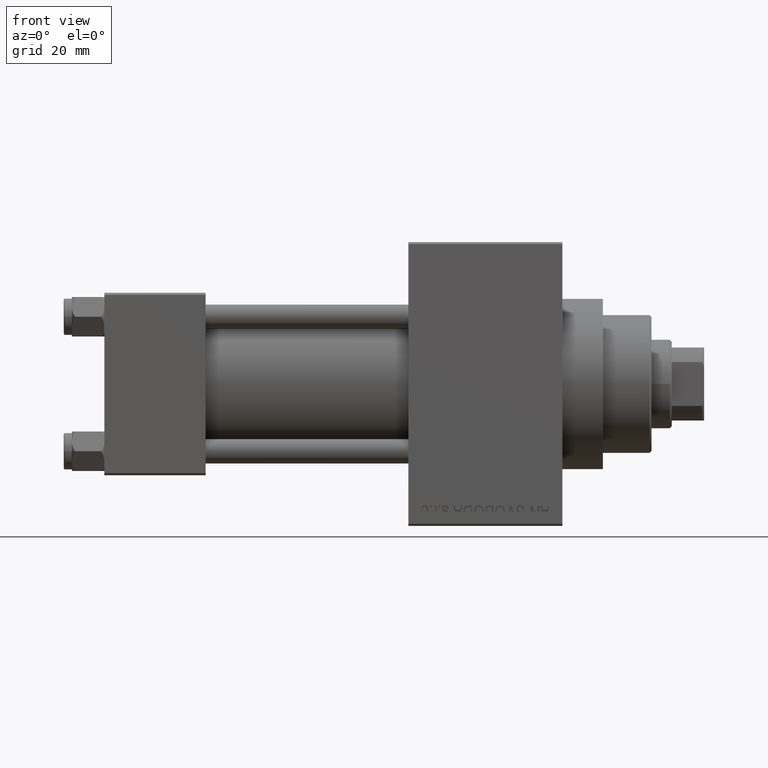
[diagram: clean part render]
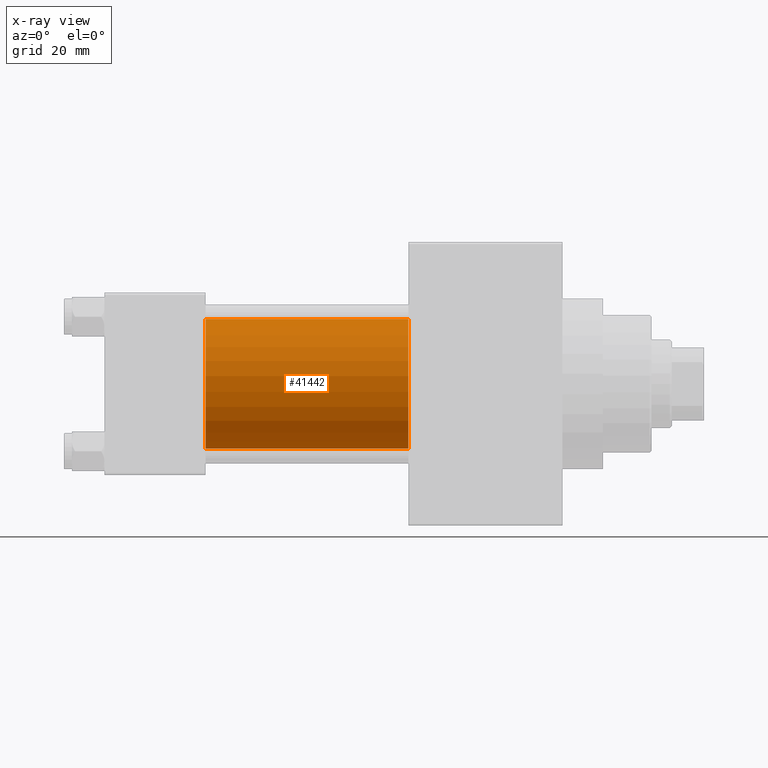
[diagram: x-ray — body ghosted, one internal face saturated and labeled with its STEP entity id]
A machine part, front view, then the same camera in x-ray: the body is ghosted and one INTERNAL B-rep face — a face not visible from any outside direction — is saturated and labeled: STEP entity #41442.
In plain terms, the highlighted cylindrical surface (partial cylindrical patch) has radius 16 mm, axis along (-1, -0, -0).
Its self-contained STEP definition (entity closure, byte-faithful):
#3373 = CARTESIAN_POINT ( 'NONE',  ( 25.00000000000000000, -2.602085213965210642E-15, 16.00000000000000000 ) ) ;
#5929 = CARTESIAN_POINT ( 'NONE',  ( 75.00000000000001421, -2.602085213965210642E-15, 0.000000000000000000 ) ) ;
#6655 = CYLINDRICAL_SURFACE ( 'NONE', #44737, 16.00000000000000000 ) ;
#8057 = AXIS2_PLACEMENT_3D ( 'NONE', #35796, #38539, #46979 ) ;
#9457 = LINE ( 'NONE', #42997, #16844 ) ;
#11369 = CIRCLE ( 'NONE', #39136, 16.00000000000000000 ) ;
#11475 = CARTESIAN_POINT ( 'NONE',  ( 75.00000000000001421, -6.426503353294456087E-16, -16.00000000000000000 ) ) ;
#12828 = EDGE_CURVE ( 'NONE', #32093, #22797, #9457, .T. ) ;
#14147 = DIRECTION ( 'NONE',  ( 1.000000000000000000, 0.000000000000000000, 0.000000000000000000 ) ) ;
#14867 = DIRECTION ( 'NONE',  ( -1.000000000000000000, -0.000000000000000000, -0.000000000000000000 ) ) ;
#15122 = DIRECTION ( 'NONE',  ( 0.000000000000000000, 0.000000000000000000, -1.000000000000000000 ) ) ;
#15828 = ORIENTED_EDGE ( 'NONE', *, *, #35821, .F. ) ;
#16706 = CARTESIAN_POINT ( 'NONE',  ( 75.00000000000001421, -2.602085213965210642E-15, 16.00000000000000000 ) ) ;
#16844 = VECTOR ( 'NONE', #31586, 1000.000000000000000 ) ;
#17077 = DIRECTION ( 'NONE',  ( -1.000000000000000000, -0.000000000000000000, -0.000000000000000000 ) ) ;
#17810 = DIRECTION ( 'NONE',  ( 0.000000000000000000, 0.000000000000000000, 1.000000000000000000 ) ) ;
#18749 = VERTEX_POINT ( 'NONE', #3373 ) ;
#20716 = CIRCLE ( 'NONE', #8057, 16.00000000000000000 ) ;
#22797 = VERTEX_POINT ( 'NONE', #30474 ) ;
#29791 = EDGE_LOOP ( 'NONE', ( #32965, #44186, #15828, #30932 ) ) ;
#30027 = LINE ( 'NONE', #46339, #36077 ) ;
#30474 = CARTESIAN_POINT ( 'NONE',  ( 25.00000000000000000, -6.426503353294456087E-16, -16.00000000000000000 ) ) ;
#30932 = ORIENTED_EDGE ( 'NONE', *, *, #47438, .F. ) ;
#31586 = DIRECTION ( 'NONE',  ( -1.000000000000000000, -0.000000000000000000, -0.000000000000000000 ) ) ;
#32093 = VERTEX_POINT ( 'NONE', #11475 ) ;
#32965 = ORIENTED_EDGE ( 'NONE', *, *, #41154, .T. ) ;
#34740 = VERTEX_POINT ( 'NONE', #16706 ) ;
#35796 = CARTESIAN_POINT ( 'NONE',  ( 25.00000000000000000, -2.602085213965210642E-15, 0.000000000000000000 ) ) ;
#35821 = EDGE_CURVE ( 'NONE', #18749, #22797, #20716, .T. ) ;
#36077 = VECTOR ( 'NONE', #14867, 1000.000000000000000 ) ;
#38539 = DIRECTION ( 'NONE',  ( 1.000000000000000000, 0.000000000000000000, 0.000000000000000000 ) ) ;
#39136 = AXIS2_PLACEMENT_3D ( 'NONE', #48184, #14147, #15122 ) ;
#41154 = EDGE_CURVE ( 'NONE', #34740, #32093, #11369, .T. ) ;
#41442 = ADVANCED_FACE ( 'NONE', ( #43433 ), #6655, .F. ) ;
#42997 = CARTESIAN_POINT ( 'NONE',  ( 75.00000000000001421, -6.426503353294456087E-16, -16.00000000000000000 ) ) ;
#43433 = FACE_OUTER_BOUND ( 'NONE', #29791, .T. ) ;
#44186 = ORIENTED_EDGE ( 'NONE', *, *, #12828, .T. ) ;
#44737 = AXIS2_PLACEMENT_3D ( 'NONE', #5929, #17077, #17810 ) ;
#46339 = CARTESIAN_POINT ( 'NONE',  ( 75.00000000000001421, -2.602085213965210642E-15, 16.00000000000000000 ) ) ;
#46979 = DIRECTION ( 'NONE',  ( 0.000000000000000000, 0.000000000000000000, -1.000000000000000000 ) ) ;
#47438 = EDGE_CURVE ( 'NONE', #34740, #18749, #30027, .T. ) ;
#48184 = CARTESIAN_POINT ( 'NONE',  ( 75.00000000000001421, -2.602085213965210642E-15, 0.000000000000000000 ) ) ;